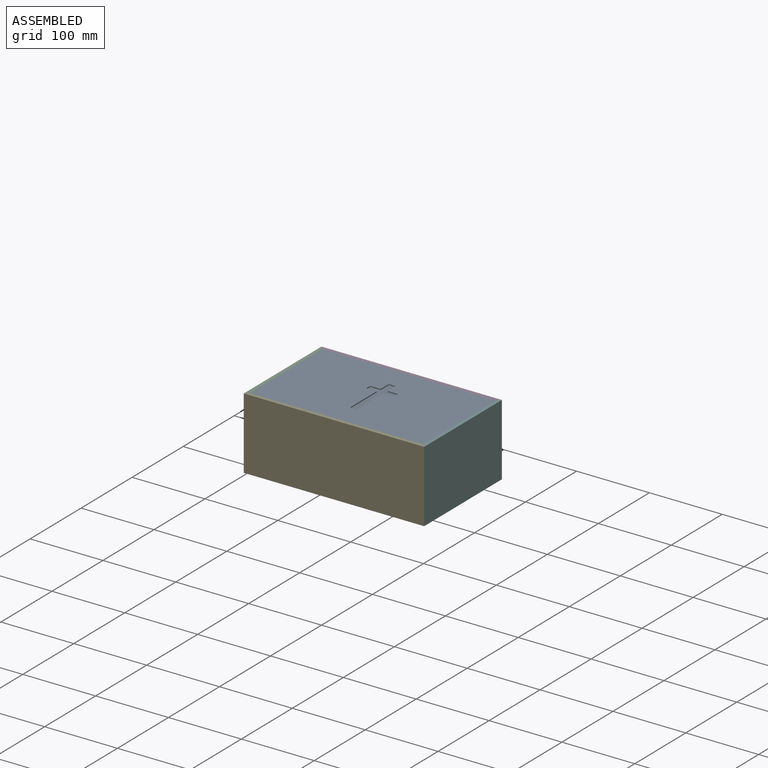
[diagram: assembled view]
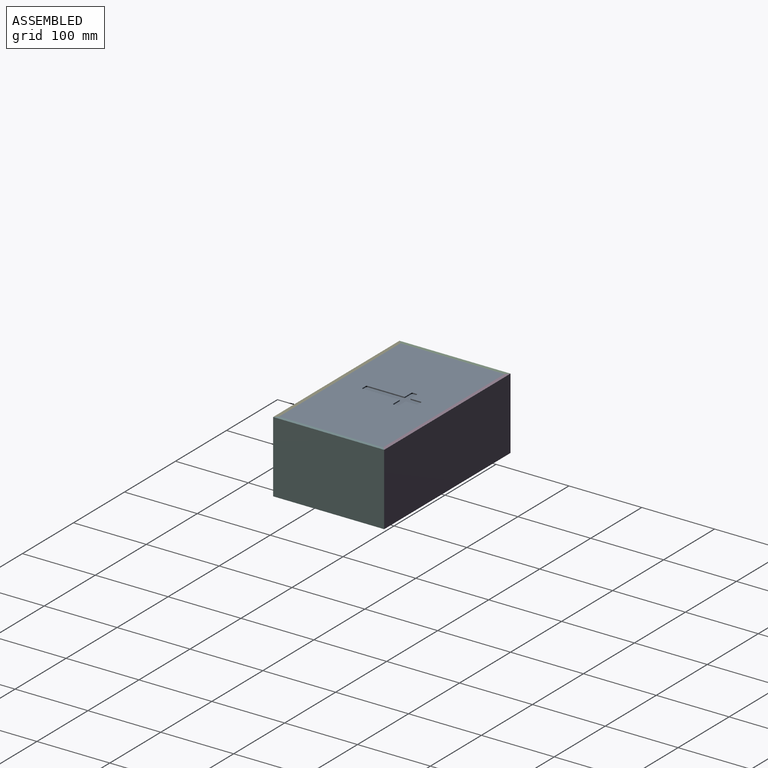
[diagram: assembled view, second angle]
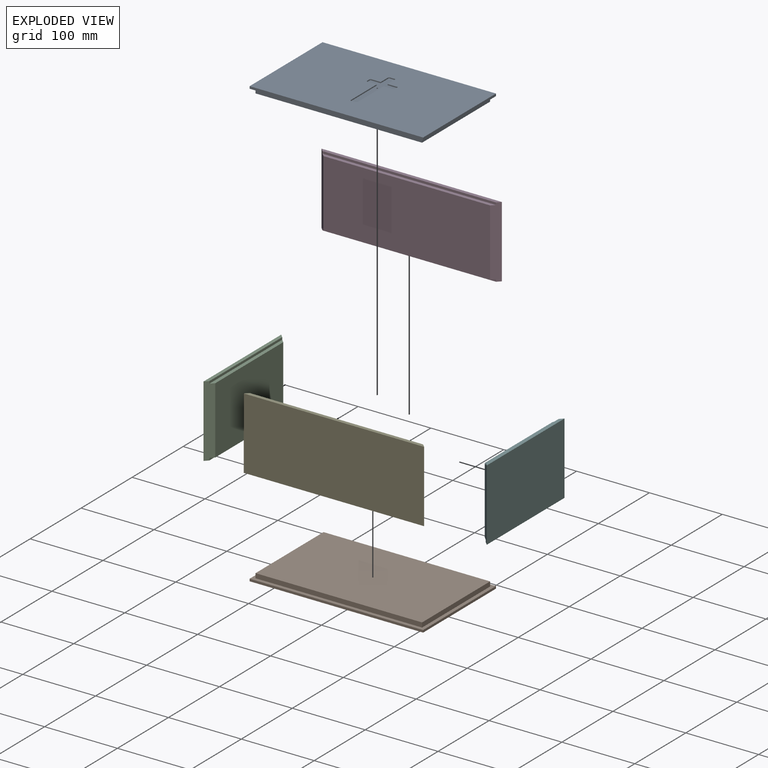
[diagram: exploded view]
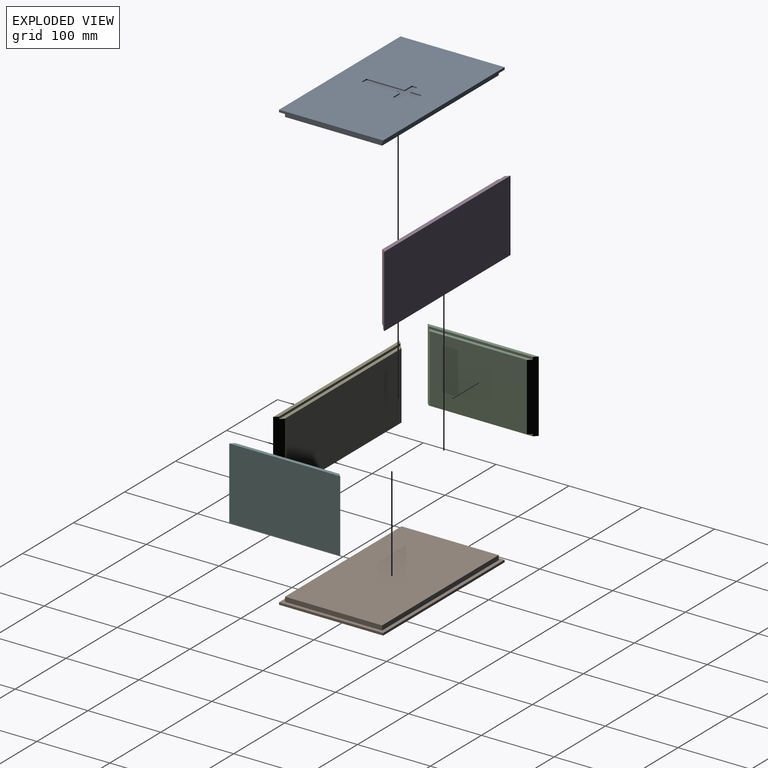
[diagram: exploded view, second angle]
ASSEMBLY  parts=6 mates=5
PART A: 32 faces, bbox 238.1x142.9x9.5 mm
  f0: plane 238.13x142.88mm, normal (0,0,-1), area 33073.9mm2, adj f1,f2,f3,f4,f11,f12,f13,f14
  f1: plane 142.88x3.18mm, normal (-1,0,0), area 453.6mm2, adj f0,f2,f4,f9
  f2: plane 238.13x3.18mm, normal (0,-1,0), area 756mm2, adj f0,f1,f3,f9
  f3: plane 142.88x3.18mm, normal (1,0,0), area 453.6mm2, adj f0,f2,f4,f9
  f4: plane 238.13x3.18mm, normal (0,1,0), area 756mm2, adj f0,f1,f3,f9
  f5: plane 228.6x6.35mm, normal (0,-1,0), area 1451.6mm2, adj f6,f8,f9,f10
  f6: plane 133.35x6.35mm, normal (-1,0,0), area 846.8mm2, adj f5,f7,f9,f10
  f7: plane 228.6x6.35mm, normal (0,1,0), area 1451.6mm2, adj f6,f8,f9,f10
  f8: plane 133.35x6.35mm, normal (1,0,0), area 846.8mm2, adj f5,f7,f9,f10
  f9: plane 238.13x142.88mm, normal (0,0,1), area 3538.3mm2, adj f1,f2,f3,f4,f5,f6,f7,f8
  f10: plane 228.6x133.35mm, normal (0,0,1), area 30483.8mm2, adj f5,f6,f7,f8
  f11: plane 6.32x1.52mm, normal (0,1,0), area 9.6mm2, adj f0,f12,f30,f31
  f12: cylinder r=1.6mm len=1.6mm, axis (0,0,-1), area 3.8mm2, adj f0,f11,f13,f31
  f13: plane 14.28x1.52mm, normal (1,0,0), area 21.8mm2, adj f0,f12,f14,f31
  f14: plane 12.69x1.52mm, normal (0,1,0), area 19.3mm2, adj f0,f13,f15,f31
  f15: cylinder r=1.6mm len=1.6mm, axis (0,0,-1), area 3.8mm2, adj f0,f14,f16,f31
  f16: plane 4.74x1.52mm, normal (1,0,0), area 7.2mm2, adj f0,f15,f17,f31
  f17: cylinder r=1.6mm len=1.6mm, axis (0,0,-1), area 3.8mm2, adj f0,f16,f18,f31
  f18: plane 12.69x1.52mm, normal (0,-1,0), area 19.3mm2, adj f0,f17,f19,f31
  f19: plane 50.79x1.52mm, normal (1,0,0), area 77.4mm2, adj f0,f18,f20,f31
  f20: cylinder r=1.6mm len=1.6mm, axis (0,0,-1), area 3.8mm2, adj f0,f19,f21,f31
  f21: plane 6.32x1.52mm, normal (0,-1,0), area 9.6mm2, adj f0,f20,f22,f31
  f22: cylinder r=1.6mm len=1.6mm, axis (0,0,-1), area 3.8mm2, adj f0,f21,f23,f31
  f23: plane 50.79x1.52mm, normal (-1,0,0), area 77.4mm2, adj f0,f22,f24,f31
  f24: plane 12.69x1.52mm, normal (0,-1,0), area 19.3mm2, adj f0,f23,f25,f31
  f25: cylinder r=1.6mm len=1.6mm, axis (0,0,-1), area 3.8mm2, adj f0,f24,f26,f31
  f26: plane 4.74x1.52mm, normal (-1,0,0), area 7.2mm2, adj f0,f25,f27,f31
  f27: cylinder r=1.6mm len=1.6mm, axis (0,0,-1), area 3.8mm2, adj f0,f26,f28,f31
  f28: plane 12.69x1.52mm, normal (0,1,0), area 19.3mm2, adj f0,f27,f29,f31
  f29: plane 14.28x1.52mm, normal (-1,0,0), area 21.8mm2, adj f0,f28,f30,f31
  f30: cylinder r=1.6mm len=1.6mm, axis (0,0,-1), area 3.8mm2, adj f0,f11,f29,f31
  f31: plane 76.2x38.1mm, normal (0,0,-1), area 948.2mm2, adj f11,f12,f13,f14,f15,f16,f17,f18
PART B: 11 faces, bbox 238.1x142.9x9.5 mm
  f0: plane 142.88x3.18mm, normal (-1,0,0), area 453.6mm2, adj f1,f3,f4,f9
  f1: plane 238.13x3.18mm, normal (0,-1,0), area 756mm2, adj f0,f2,f4,f9
  f2: plane 142.88x3.18mm, normal (1,0,0), area 453.6mm2, adj f1,f3,f4,f9
  f3: plane 238.13x3.18mm, normal (0,1,0), area 756mm2, adj f0,f2,f4,f9
  f4: plane 238.13x142.88mm, normal (0,0,-1), area 34022.1mm2, adj f0,f1,f2,f3
  f5: plane 228.6x6.35mm, normal (0,-1,0), area 1451.6mm2, adj f6,f8,f9,f10
  f6: plane 133.35x6.35mm, normal (-1,0,0), area 846.8mm2, adj f5,f7,f9,f10
  f7: plane 228.6x6.35mm, normal (0,1,0), area 1451.6mm2, adj f6,f8,f9,f10
  f8: plane 133.35x6.35mm, normal (1,0,0), area 846.8mm2, adj f5,f7,f9,f10
  f9: plane 238.13x142.88mm, normal (0,0,1), area 3538.3mm2, adj f0,f1,f2,f3,f5,f6,f7,f8
  f10: plane 228.6x133.35mm, normal (0,0,1), area 30483.8mm2, adj f5,f6,f7,f8
PART C: 10 faces, bbox 152.4x98.4x9.5 mm
  f0: plane 133.35x92.08mm, normal (0,0,1), area 12278.2mm2, adj f1,f2,f6,f9
  f1: plane 98.43x9.53mm, normal (0.71,0,0.71), area 1283.1mm2, adj f0,f3,f4,f5,f6,f7,f8,f9
  f2: plane 98.43x9.53mm, normal (-0.71,0,0.71), area 1283.1mm2, adj f0,f3,f4,f5,f6,f7,f8,f9
  f3: plane 152.4x4.76mm, normal (0,-1,0), area 703.1mm2, adj f1,f2,f5,f8
  f4: plane 152.4x4.76mm, normal (0,1,0), area 703.1mm2, adj f1,f2,f5,f7
  f5: plane 152.4x98.43mm, normal (0,0,-1), area 15000mm2, adj f1,f2,f3,f4
  f6: plane 142.88x4.76mm, normal (0,1,0), area 657.8mm2, adj f0,f1,f2,f7
  f7: plane 142.88x3.18mm, normal (0,0,1), area 453.6mm2, adj f1,f2,f4,f6
  f8: plane 142.88x3.18mm, normal (0,0,1), area 453.6mm2, adj f1,f2,f3,f9
  f9: plane 142.88x4.76mm, normal (0,-1,0), area 657.8mm2, adj f0,f1,f2,f8
PART D: 10 faces, bbox 247.7x98.4x9.5 mm
  f0: plane 228.6x92.08mm, normal (0,0,1), area 21048.3mm2, adj f1,f2,f6,f9
  f1: plane 98.43x9.53mm, normal (0.71,0,0.71), area 1283.1mm2, adj f0,f3,f4,f5,f6,f7,f8,f9
  f2: plane 98.43x9.53mm, normal (-0.71,0,0.71), area 1283.1mm2, adj f0,f3,f4,f5,f6,f7,f8,f9
  f3: plane 247.65x4.76mm, normal (0,-1,0), area 1156.8mm2, adj f1,f2,f5,f8
  f4: plane 247.65x4.76mm, normal (0,1,0), area 1156.8mm2, adj f1,f2,f5,f7
  f5: plane 247.65x98.43mm, normal (0,0,-1), area 24375mm2, adj f1,f2,f3,f4
  f6: plane 238.13x4.76mm, normal (0,1,0), area 1111.4mm2, adj f0,f1,f2,f7
  f7: plane 238.13x3.18mm, normal (0,0,1), area 756mm2, adj f1,f2,f4,f6
  f8: plane 238.13x3.18mm, normal (0,0,1), area 756mm2, adj f1,f2,f3,f9
  f9: plane 238.13x4.76mm, normal (0,-1,0), area 1111.4mm2, adj f0,f1,f2,f8
PART E: same geometry as D
PART F: same geometry as C
PLACE A rot(axis=(1,0,0),180deg) t=(4.76,-4.76,98.42)mm
PLACE B t=(4.76,-147.64,0)mm
PLACE C rot(axis=(0.58,0.58,0.58),120deg) t=(0,-152.4,0)mm
PLACE D rot(axis=(1,0,0),90deg) t=(0,0,0)mm
PLACE E rot(axis=(0,0.71,0.71),180deg) t=(247.65,-152.4,0)mm
PLACE F rot(axis=(0.58,-0.58,-0.58),120deg) t=(247.65,0,0)mm
MATE fastened C.f3 <-> D.f3  axis (0,0,1) through (0,0,0)mm
MATE fastened E.f3 <-> C.f3  axis (0,0,1) through (0,-152.4,0)mm
MATE fastened D.f3 <-> F.f3  axis (0,0,1) through (247.65,0,0)mm
MATE fastened B.f4 <-> C.f3  axis (0,0,-1) through (4.76,-147.64,0)mm
MATE fastened A.f0 <-> C.f4  axis (0,0,-1) through (4.76,-4.76,98.42)mm
